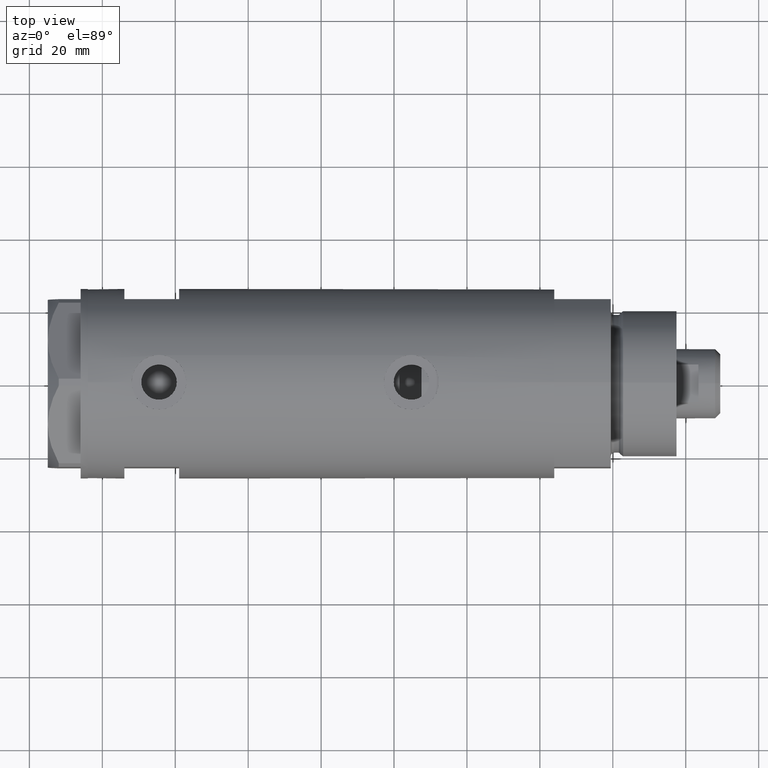
[diagram: clean part render]
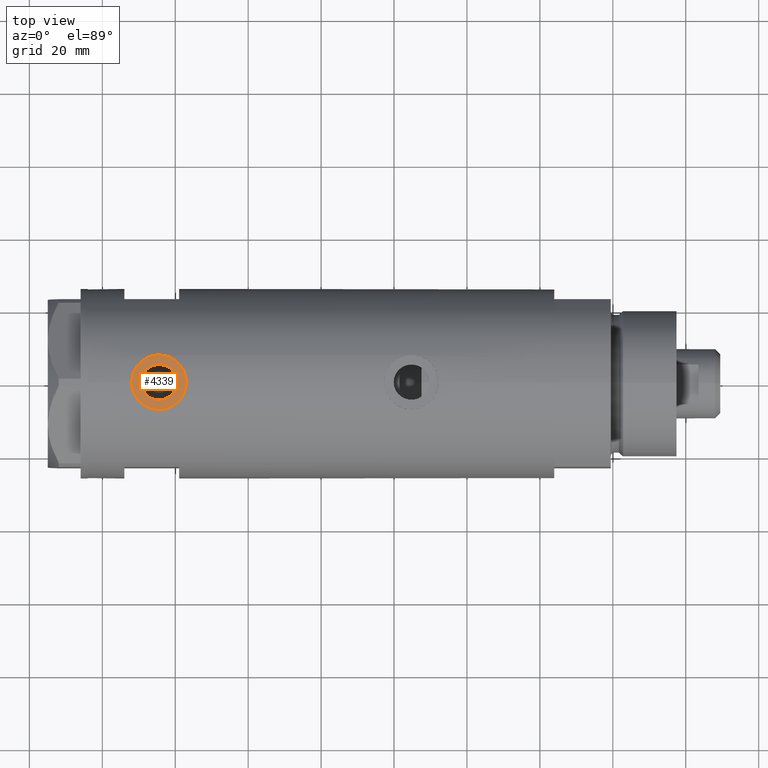
[diagram: same view with one face highlighted and labeled with its STEP entity id]
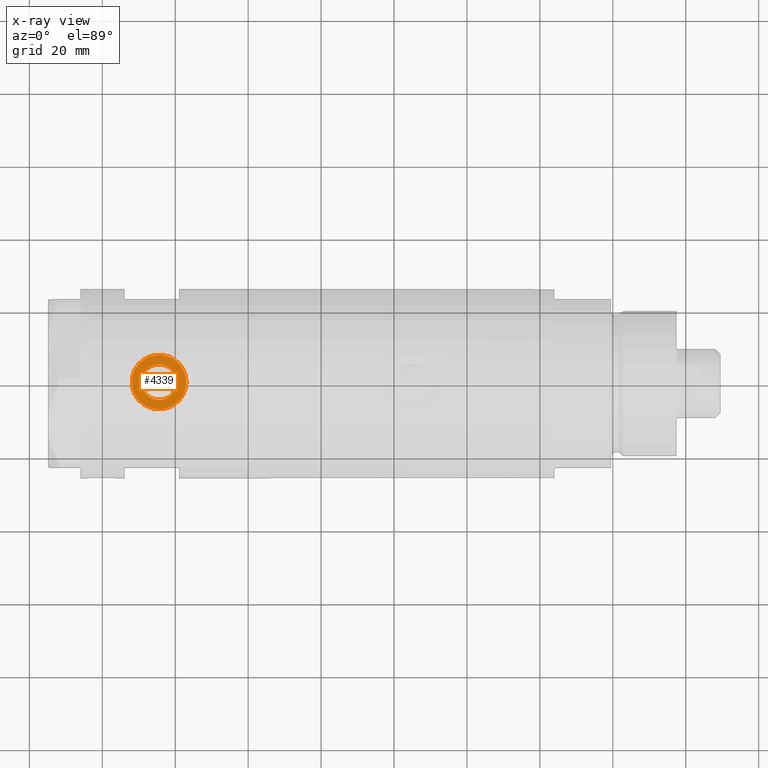
[diagram: x-ray of the same camera — body ghosted, the highlighted face saturated]
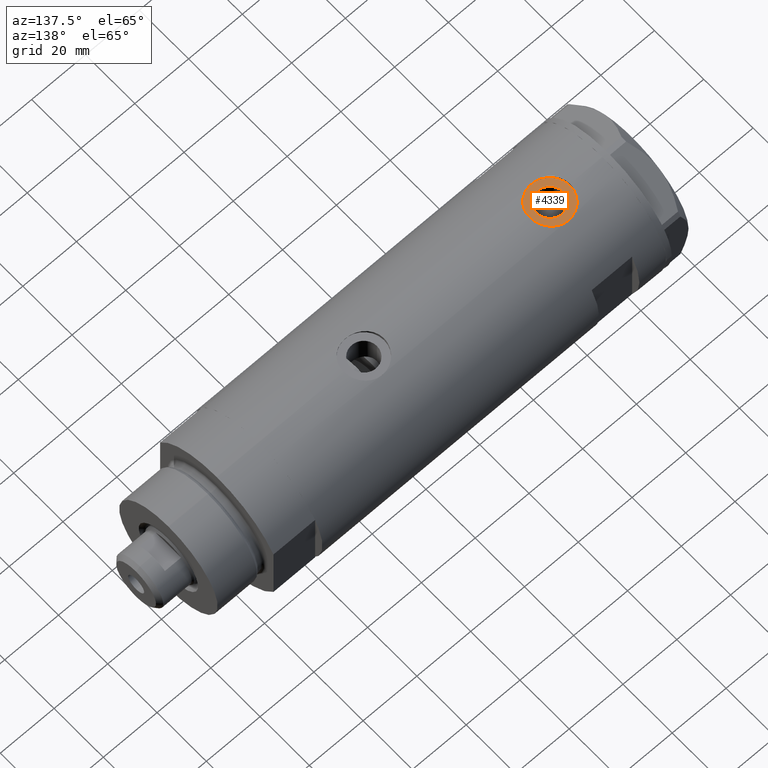
[diagram: same view with one face highlighted and labeled with its STEP entity id]
A machine part, top view. The second image highlights one B-rep face of the part: STEP entity #4339.
The next image is the same camera in x-ray: the body ghosted, the highlighted face saturated — about 0% of this face is hidden behind the body in this view.
A second angle (auxiliary view) of the same face is appended — the face is thin or edge-on in the first view.
In plain terms, the highlighted planar face has unit normal (0, 0, 1).
Its self-contained STEP definition (entity closure, byte-faithful):
#88 = DIRECTION ( 'NONE',  ( 1.000000000000000000, 0.000000000000000000, 0.000000000000000000 ) ) ;
#98 = ORIENTED_EDGE ( 'NONE', *, *, #607, .F. ) ;
#143 = VERTEX_POINT ( 'NONE', #236 ) ;
#236 = CARTESIAN_POINT ( 'NONE',  ( 24.80000000000000426, 0.000000000000000000, 39.58500000000000085 ) ) ;
#517 = EDGE_CURVE ( 'NONE', #3299, #4307, #3349, .T. ) ;
#607 = EDGE_CURVE ( 'NONE', #899, #143, #3851, .T. ) ;
#678 = DIRECTION ( 'NONE',  ( 0.000000000000000000, 0.000000000000000000, -1.000000000000000000 ) ) ;
#746 = ORIENTED_EDGE ( 'NONE', *, *, #3806, .T. ) ;
#758 = AXIS2_PLACEMENT_3D ( 'NONE', #1254, #88, #4440 ) ;
#899 = VERTEX_POINT ( 'NONE', #4597 ) ;
#919 = DIRECTION ( 'NONE',  ( 1.000000000000000000, 0.000000000000000000, 0.000000000000000000 ) ) ;
#1075 = DIRECTION ( 'NONE',  ( 1.000000000000000000, 0.000000000000000000, 0.000000000000000000 ) ) ;
#1097 = AXIS2_PLACEMENT_3D ( 'NONE', #2589, #1075, #678 ) ;
#1206 = CARTESIAN_POINT ( 'NONE',  ( 24.80000000000000426, 0.000000000000000000, 44.45000000000000284 ) ) ;
#1254 = CARTESIAN_POINT ( 'NONE',  ( 24.80000000000000426, 0.000000000000000000, 44.45000000000000284 ) ) ;
#1641 = ORIENTED_EDGE ( 'NONE', *, *, #517, .T. ) ;
#1683 = CARTESIAN_POINT ( 'NONE',  ( 24.80000000000000426, 0.000000000000000000, 44.45000000000000284 ) ) ;
#1967 = FACE_OUTER_BOUND ( 'NONE', #2468, .T. ) ;
#2262 = CARTESIAN_POINT ( 'NONE',  ( 24.80000000000000426, 0.000000000000000000, 44.45000000000000284 ) ) ;
#2314 = DIRECTION ( 'NONE',  ( 0.000000000000000000, 0.000000000000000000, -1.000000000000000000 ) ) ;
#2385 = EDGE_LOOP ( 'NONE', ( #2785, #98 ) ) ;
#2468 = EDGE_LOOP ( 'NONE', ( #1641, #746 ) ) ;
#2549 = CIRCLE ( 'NONE', #4559, 4.865000000000001101 ) ;
#2589 = CARTESIAN_POINT ( 'NONE',  ( 24.80000000000000426, 0.000000000000000000, 44.45000000000000284 ) ) ;
#2785 = ORIENTED_EDGE ( 'NONE', *, *, #4664, .F. ) ;
#2791 = CIRCLE ( 'NONE', #2877, 7.500000000000000000 ) ;
#2877 = AXIS2_PLACEMENT_3D ( 'NONE', #1683, #919, #3320 ) ;
#3289 = CARTESIAN_POINT ( 'NONE',  ( 24.80000000000000426, 9.184850993605147944E-16, 51.95000000000000284 ) ) ;
#3299 = VERTEX_POINT ( 'NONE', #5188 ) ;
#3320 = DIRECTION ( 'NONE',  ( 0.000000000000000000, 0.000000000000000000, -1.000000000000000000 ) ) ;
#3349 = CIRCLE ( 'NONE', #1097, 7.500000000000000000 ) ;
#3806 = EDGE_CURVE ( 'NONE', #4307, #3299, #2791, .T. ) ;
#3851 = CIRCLE ( 'NONE', #758, 4.865000000000001101 ) ;
#3852 = DIRECTION ( 'NONE',  ( 1.000000000000000000, 0.000000000000000000, 0.000000000000000000 ) ) ;
#3995 = PLANE ( 'NONE',  #4214 ) ;
#4214 = AXIS2_PLACEMENT_3D ( 'NONE', #1206, #4312, #4395 ) ;
#4307 = VERTEX_POINT ( 'NONE', #3289 ) ;
#4312 = DIRECTION ( 'NONE',  ( 1.000000000000000000, 0.000000000000000000, 0.000000000000000000 ) ) ;
#4339 = ADVANCED_FACE ( 'NONE', ( #5159, #1967 ), #3995, .T. ) ;
#4395 = DIRECTION ( 'NONE',  ( 0.000000000000000000, 0.000000000000000000, -1.000000000000000000 ) ) ;
#4440 = DIRECTION ( 'NONE',  ( 0.000000000000000000, 0.000000000000000000, -1.000000000000000000 ) ) ;
#4559 = AXIS2_PLACEMENT_3D ( 'NONE', #2262, #3852, #2314 ) ;
#4597 = CARTESIAN_POINT ( 'NONE',  ( 24.80000000000000426, 5.957906677851871624E-16, 49.31500000000000483 ) ) ;
#4664 = EDGE_CURVE ( 'NONE', #143, #899, #2549, .T. ) ;
#5159 = FACE_BOUND ( 'NONE', #2385, .T. ) ;
#5188 = CARTESIAN_POINT ( 'NONE',  ( 24.80000000000000426, 0.000000000000000000, 36.95000000000000284 ) ) ;